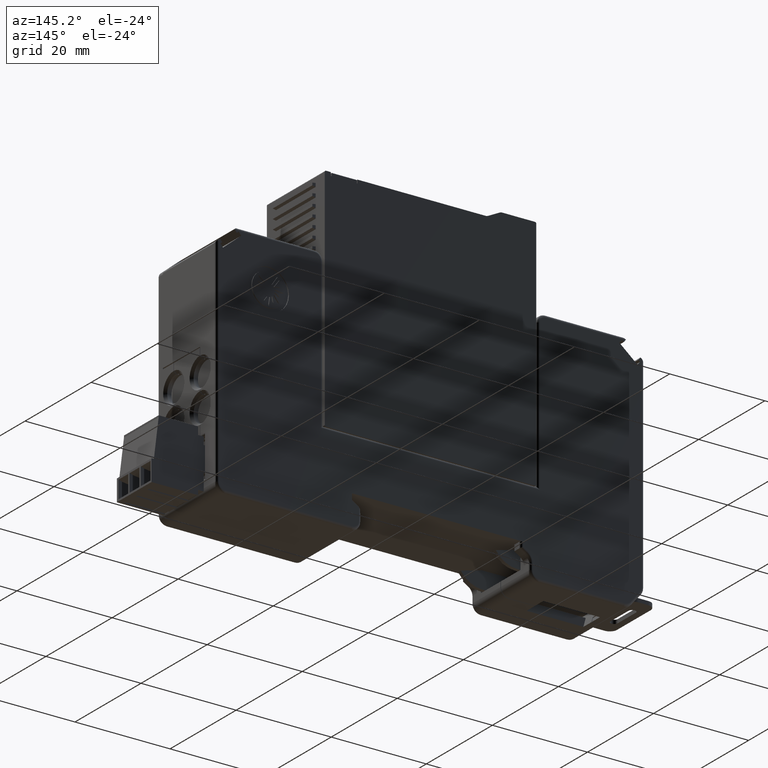
[diagram: clean part render]
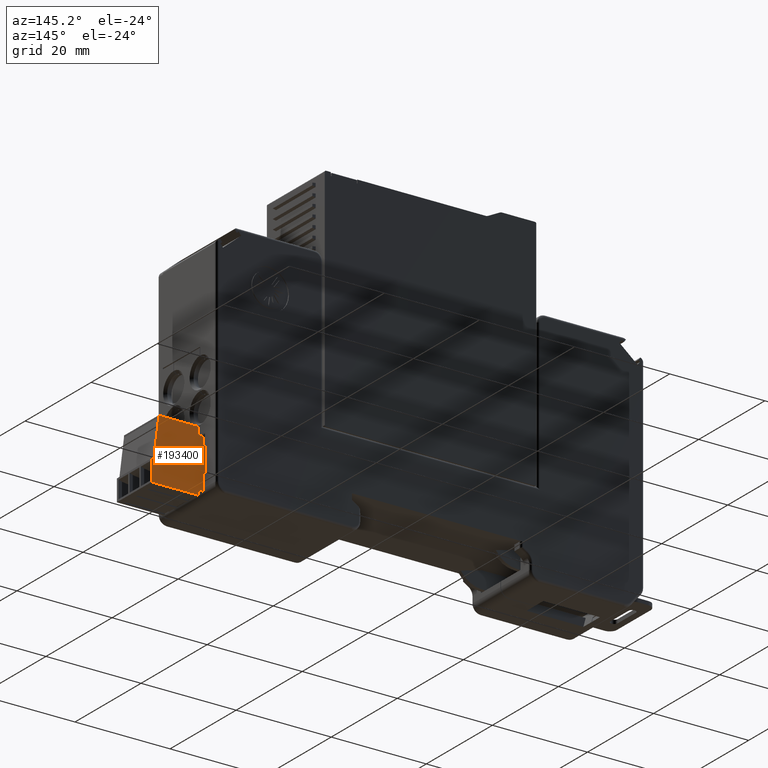
[diagram: same view with one face highlighted and labeled with its STEP entity id]
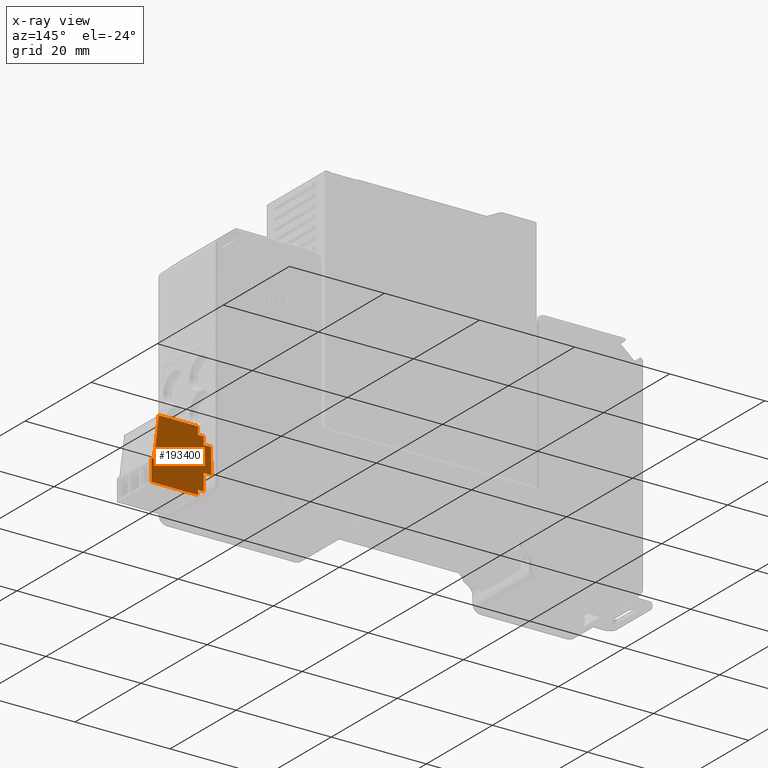
[diagram: x-ray of the same camera — body ghosted, the highlighted face saturated]
A machine part, auxiliary view. The second image highlights one B-rep face of the part: STEP entity #193400.
The next image is the same camera in x-ray: the body ghosted, the highlighted face saturated — about 0% of this face is hidden behind the body in this view.
In plain terms, the highlighted planar face has unit normal (0, -1, 0).
Its self-contained STEP definition (entity closure, byte-faithful):
#75790=CARTESIAN_POINT('',(-128.307501833057,941.961242401068,
15.1628689999992));
#75800=VERTEX_POINT('',#75790);
#75830=CARTESIAN_POINT('',(-128.307501833057,941.961242401068,
3.7283145462322));
#75840=DIRECTION('',(0.,-6.12323399573677E-17,-1.));
#75850=VECTOR('',#75840,1.);
#75860=LINE('',#75830,#75850);
#75870=CARTESIAN_POINT('',(-128.307501833057,941.961242401068,
17.8128689999993));
#75880=VERTEX_POINT('',#75870);
#75890=EDGE_CURVE('',#75880,#75800,#75860,.T.);
#133430=CARTESIAN_POINT('',(-128.407462,941.961242401068,
12.5128689999993));
#133440=VERTEX_POINT('',#133430);
#133470=CARTESIAN_POINT('',(-128.407462,941.961242401068,3.7283145462322
));
#133480=DIRECTION('',(0.,-6.12323399573677E-17,-1.));
#133490=VECTOR('',#133480,1.);
#133500=LINE('',#133470,#133490);
#133510=CARTESIAN_POINT('',(-128.407462,941.961242401068,
15.1628689999992));
#133520=VERTEX_POINT('',#133510);
#133530=EDGE_CURVE('',#133520,#133440,#133500,.T.);
#190900=CARTESIAN_POINT('',(-212.745219310265,941.961242401068,
15.1628689999992));
#190910=DIRECTION('',(-1.,0.,0.));
#190920=VECTOR('',#190910,1.);
#190930=LINE('',#190900,#190920);
#190940=EDGE_CURVE('',#75800,#133520,#190930,.T.);
#191190=CARTESIAN_POINT('',(-126.807501833057,941.961242401068,
17.8128689999993));
#191200=VERTEX_POINT('',#191190);
#191230=CARTESIAN_POINT('',(-126.807501833057,941.961242401068,
-0.599999999999799));
#191240=DIRECTION('',(0.,-6.12323399573677E-17,-1.));
#191250=VECTOR('',#191240,1.);
#191260=LINE('',#191230,#191250);
#191270=CARTESIAN_POINT('',(-126.807501833057,941.961242401068,
19.4128689999994));
#191280=VERTEX_POINT('',#191270);
#191290=EDGE_CURVE('',#191280,#191200,#191260,.T.);
#192290=CARTESIAN_POINT('',(-134.290968346004,941.961242401068,
11.3126705543783));
#192300=DIRECTION('',(0.,-1.,6.12323399573677E-17));
#192310=DIRECTION('',(1.,0.,0.));
#192320=AXIS2_PLACEMENT_3D('',#192290,#192300,#192310);
#192330=PLANE('',#192320);
#192340=CARTESIAN_POINT('',(0.,941.961242401068,17.8128689999993));
#192350=DIRECTION('',(1.,0.,0.));
#192360=VECTOR('',#192350,1.);
#192370=LINE('',#192340,#192360);
#192380=EDGE_CURVE('',#75880,#191200,#192370,.T.);
#192390=ORIENTED_EDGE('',*,*,#192380,.T.);
#192400=ORIENTED_EDGE('',*,*,#75890,.F.);
#192410=ORIENTED_EDGE('',*,*,#190940,.F.);
#192420=ORIENTED_EDGE('',*,*,#133530,.F.);
#192430=CARTESIAN_POINT('',(0.,941.961242401068,12.5128689999993));
#192440=DIRECTION('',(1.,0.,0.));
#192450=VECTOR('',#192440,1.);
#192460=LINE('',#192430,#192450);
#192470=CARTESIAN_POINT('',(-126.807501833057,941.961242401068,
12.5128689999993));
#192480=VERTEX_POINT('',#192470);
#192490=EDGE_CURVE('',#133440,#192480,#192460,.T.);
#192500=ORIENTED_EDGE('',*,*,#192490,.F.);
#192510=CARTESIAN_POINT('',(-126.807501833057,941.961242401068,
-0.599999999999799));
#192520=DIRECTION('',(0.,6.12323399573677E-17,1.));
#192530=VECTOR('',#192520,1.);
#192540=LINE('',#192510,#192530);
#192550=CARTESIAN_POINT('',(-126.807501833057,941.961242401068,
9.01286899999934));
#192560=VERTEX_POINT('',#192550);
#192570=EDGE_CURVE('',#192560,#192480,#192540,.T.);
#192580=ORIENTED_EDGE('',*,*,#192570,.T.);
#192590=CARTESIAN_POINT('',(0.,941.961242401068,9.01286899999934));
#192600=DIRECTION('',(-1.,0.,0.));
#192610=VECTOR('',#192600,1.);
#192620=LINE('',#192590,#192610);
#192630=CARTESIAN_POINT('',(-125.607501833057,941.961242401068,
9.01286899999934));
#192640=VERTEX_POINT('',#192630);
#192650=EDGE_CURVE('',#192640,#192560,#192620,.T.);
#192660=ORIENTED_EDGE('',*,*,#192650,.T.);
#192670=CARTESIAN_POINT('',(-125.607501833057,941.961242401068,
-0.599999999999799));
#192680=DIRECTION('',(0.,6.12323399573677E-17,1.));
#192690=VECTOR('',#192680,1.);
#192700=LINE('',#192670,#192690);
#192710=CARTESIAN_POINT('',(-125.607501833057,941.961242401068,
8.01286899999934));
#192720=VERTEX_POINT('',#192710);
#192730=EDGE_CURVE('',#192720,#192640,#192700,.T.);
#192740=ORIENTED_EDGE('',*,*,#192730,.T.);
#192750=CARTESIAN_POINT('',(0.,941.961242401068,8.01286899999934));
#192760=DIRECTION('',(-1.,0.,0.));
#192770=VECTOR('',#192760,1.);
#192780=LINE('',#192750,#192770);
#192790=CARTESIAN_POINT('',(-115.807501833057,941.961242401068,
8.01286899999934));
#192800=VERTEX_POINT('',#192790);
#192810=EDGE_CURVE('',#192800,#192720,#192780,.T.);
#192820=ORIENTED_EDGE('',*,*,#192810,.T.);
#192830=CARTESIAN_POINT('',(-115.807501833057,941.961242401068,
-0.599999999999799));
#192840=DIRECTION('',(0.,-6.12323399573677E-17,-1.));
#192850=VECTOR('',#192840,1.);
#192860=LINE('',#192830,#192850);
#192870=CARTESIAN_POINT('',(-115.807501833057,941.961242401068,
12.5128689999993));
#192880=VERTEX_POINT('',#192870);
#192890=EDGE_CURVE('',#192880,#192800,#192860,.T.);
#192900=ORIENTED_EDGE('',*,*,#192890,.T.);
#192910=CARTESIAN_POINT('',(0.,941.961242401068,12.5128689999993));
#192920=DIRECTION('',(1.,0.,0.));
#192930=VECTOR('',#192920,1.);
#192940=LINE('',#192910,#192930);
#192950=CARTESIAN_POINT('',(-116.307501833057,941.961242401068,
12.5128689999993));
#192960=VERTEX_POINT('',#192950);
#192970=EDGE_CURVE('',#192960,#192880,#192940,.T.);
#192980=ORIENTED_EDGE('',*,*,#192970,.T.);
#192990=CARTESIAN_POINT('',(-114.688629117008,941.961242401068,
-0.599999999999799));
#193000=DIRECTION('',(0.122526572002647,-5.55111512312578E-17,
-0.992465233221436));
#193010=VECTOR('',#193000,1.);
#193020=LINE('',#192990,#193010);
#193030=CARTESIAN_POINT('',(-117.307501833057,941.961242401068,
20.6128689999993));
#193040=VERTEX_POINT('',#193030);
#193050=EDGE_CURVE('',#193040,#192960,#193020,.T.);
#193060=ORIENTED_EDGE('',*,*,#193050,.T.);
#193070=CARTESIAN_POINT('',(-117.307501833057,941.961242401068,
-0.599999999999799));
#193080=DIRECTION('',(0.,-6.12323399573677E-17,-1.));
#193090=VECTOR('',#193080,1.);
#193100=LINE('',#193070,#193090);
#193110=CARTESIAN_POINT('',(-117.307501833057,941.961242401068,
21.0128689999994));
#193120=VERTEX_POINT('',#193110);
#193130=EDGE_CURVE('',#193120,#193040,#193100,.T.);
#193140=ORIENTED_EDGE('',*,*,#193130,.T.);
#193150=CARTESIAN_POINT('',(0.,941.961242401068,21.0128689999994));
#193160=DIRECTION('',(1.,0.,0.));
#193170=VECTOR('',#193160,1.);
#193180=LINE('',#193150,#193170);
#193190=CARTESIAN_POINT('',(-125.607501833057,941.961242401068,
21.0128689999994));
#193200=VERTEX_POINT('',#193190);
#193210=EDGE_CURVE('',#193200,#193120,#193180,.T.);
#193220=ORIENTED_EDGE('',*,*,#193210,.T.);
#193230=CARTESIAN_POINT('',(-125.607501833057,941.961242401068,
-0.599999999999799));
#193240=DIRECTION('',(0.,-6.12323399573677E-17,-1.));
#193250=VECTOR('',#193240,1.);
#193260=LINE('',#193230,#193250);
#193270=CARTESIAN_POINT('',(-125.607501833057,941.961242401068,
19.4128689999994));
#193280=VERTEX_POINT('',#193270);
#193290=EDGE_CURVE('',#193200,#193280,#193260,.T.);
#193300=ORIENTED_EDGE('',*,*,#193290,.F.);
#193310=CARTESIAN_POINT('',(0.,941.961242401068,19.4128689999994));
#193320=DIRECTION('',(-1.,0.,0.));
#193330=VECTOR('',#193320,1.);
#193340=LINE('',#193310,#193330);
#193350=EDGE_CURVE('',#193280,#191280,#193340,.T.);
#193360=ORIENTED_EDGE('',*,*,#193350,.F.);
#193370=ORIENTED_EDGE('',*,*,#191290,.F.);
#193380=EDGE_LOOP('',(#193370,#193360,#193300,#193220,#193140,#193060,
#192980,#192900,#192820,#192740,#192660,#192580,#192500,#192420,#192410,
#192400,#192390));
#193390=FACE_OUTER_BOUND('',#193380,.T.);
#193400=ADVANCED_FACE('',(#193390),#192330,.F.);